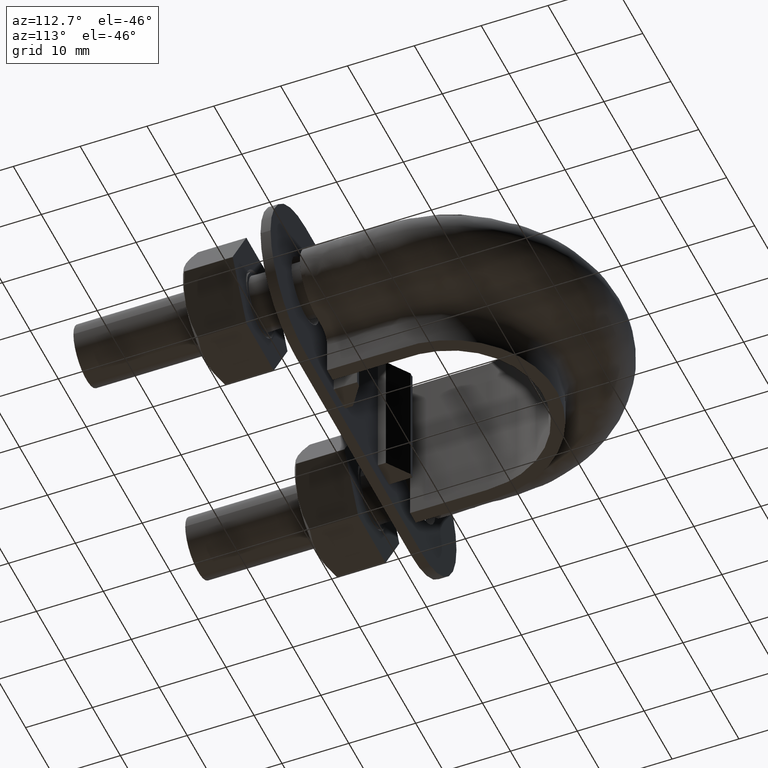
[diagram: clean part render]
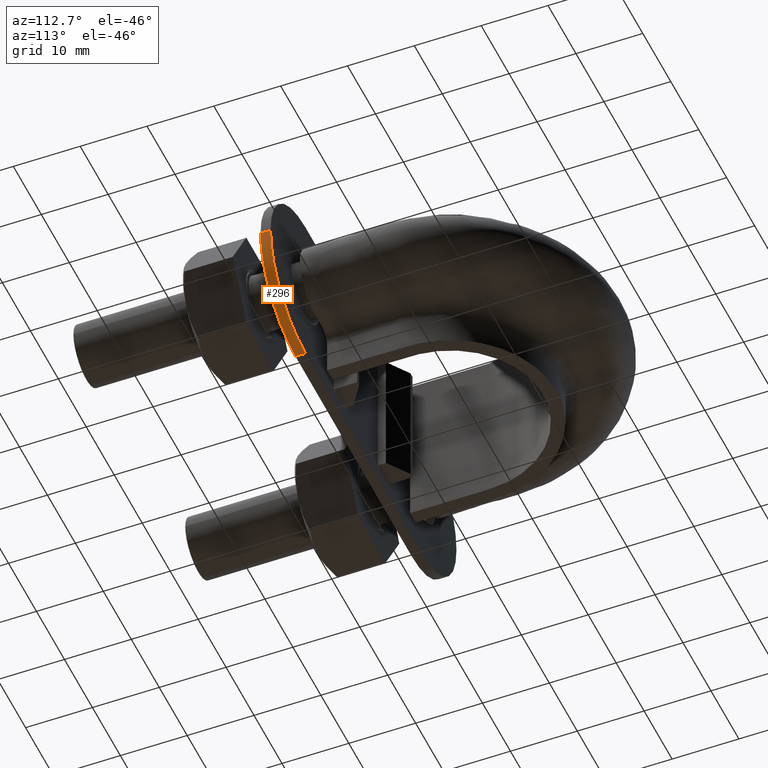
[diagram: same view with one face highlighted and labeled with its STEP entity id]
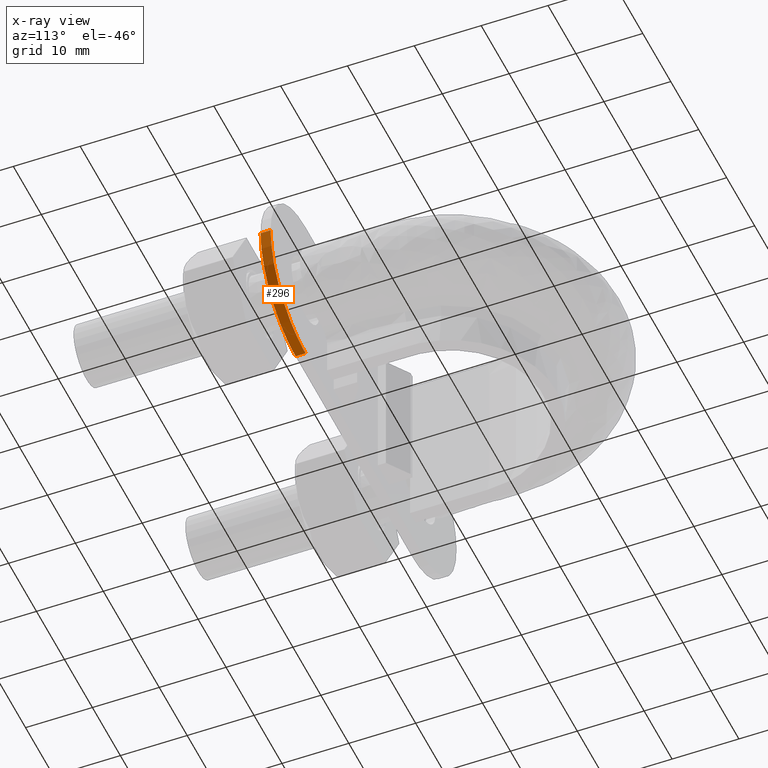
[diagram: x-ray of the same camera — body ghosted, the highlighted face saturated]
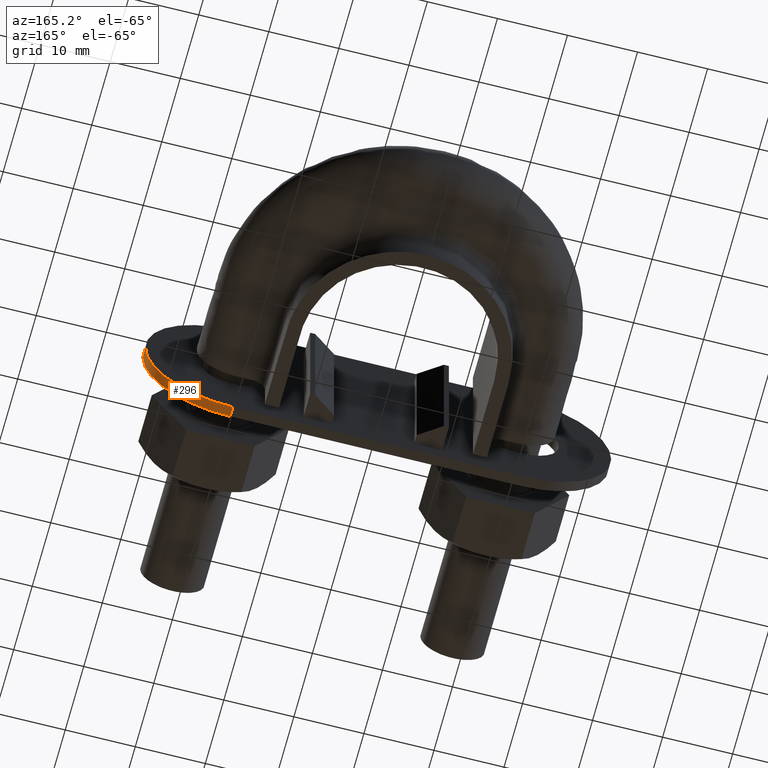
[diagram: same view with one face highlighted and labeled with its STEP entity id]
A machine part, auxiliary view. The second image highlights one B-rep face of the part: STEP entity #296.
The next image is the same camera in x-ray: the body ghosted, the highlighted face saturated — about 0% of this face is hidden behind the body in this view.
A second angle (auxiliary view) of the same face is appended — the face is thin or edge-on in the first view.
In plain terms, the highlighted cylindrical surface (partial cylindrical patch) has radius 12.5 mm, axis along (0, -1, -0).
Its self-contained STEP definition (entity closure, byte-faithful):
#296 = ADVANCED_FACE( '', ( #440 ), #441, .T. );
#440 = FACE_OUTER_BOUND( '', #1383, .T. );
#441 = CYLINDRICAL_SURFACE( '', #1384, 12.5000000000000 );
#1383 = EDGE_LOOP( '', ( #1770, #1771, #1772, #1773 ) );
#1384 = AXIS2_PLACEMENT_3D( '', #1774, #1775, #1776 );
#1770 = ORIENTED_EDGE( '', *, *, #2335, .F. );
#1771 = ORIENTED_EDGE( '', *, *, #2354, .F. );
#1772 = ORIENTED_EDGE( '', *, *, #2304, .T. );
#1773 = ORIENTED_EDGE( '', *, *, #2353, .T. );
#1774 = CARTESIAN_POINT( '', ( 19.9999999999944, 31.3000000000022, -2.26536679450446E-007 ) );
#1775 = DIRECTION( '', ( 1.09118538489341E-013, -1.00000000000000, -1.11964944317086E-013 ) );
#1776 = DIRECTION( '', ( 1.13266433177148E-008, -1.11964943081139E-013, 1.00000000000000 ) );
#2304 = EDGE_CURVE( '', #2540, #2538, #2541, .T. );
#2335 = EDGE_CURVE( '', #2594, #2596, #2597, .T. );
#2353 = EDGE_CURVE( '', #2538, #2596, #2626, .T. );
#2354 = EDGE_CURVE( '', #2540, #2594, #2627, .T. );
#2538 = VERTEX_POINT( '', #3068 );
#2540 = VERTEX_POINT( '', #3071 );
#2541 = CIRCLE( '', #3072, 12.5000000000000 );
#2594 = VERTEX_POINT( '', #3149 );
#2596 = VERTEX_POINT( '', #3151 );
#2597 = CIRCLE( '', #3152, 12.5000000000000 );
#2626 = LINE( '', #3193, #3194 );
#2627 = LINE( '', #3195, #3196 );
#3068 = CARTESIAN_POINT( '', ( 19.9999998584113, 31.3000000000036, -12.5000002265367 ) );
#3071 = CARTESIAN_POINT( '', ( 32.4999999999944, 31.3000000000036, -3.68119717452433E-007 ) );
#3072 = AXIS2_PLACEMENT_3D( '', #3644, #3645, #3646 );
#3149 = CARTESIAN_POINT( '', ( 32.4999999999942, 32.8000000000036, -3.68119549505017E-007 ) );
#3151 = CARTESIAN_POINT( '', ( 19.9999998584112, 32.8000000000036, -12.5000002265365 ) );
#3152 = AXIS2_PLACEMENT_3D( '', #3689, #3690, #3691 );
#3193 = CARTESIAN_POINT( '', ( 19.9999998584113, 31.3000000000036, -12.5000002265367 ) );
#3194 = VECTOR( '', #3719, 1000.00000000000 );
#3195 = CARTESIAN_POINT( '', ( 32.4999999999944, 31.3000000000036, -3.68119717452433E-007 ) );
#3196 = VECTOR( '', #3720, 1000.00000000000 );
#3644 = CARTESIAN_POINT( '', ( 19.9999999999944, 31.3000000000022, -2.26536679450446E-007 ) );
#3645 = DIRECTION( '', ( -1.09118538489341E-013, 1.00000000000000, 1.11964944317086E-013 ) );
#3646 = DIRECTION( '', ( 1.00000000000000, 1.09118539757528E-013, -1.13266431789369E-008 ) );
#3689 = CARTESIAN_POINT( '', ( 19.9999999999942, 32.8000000000022, -2.26536511503029E-007 ) );
#3690 = DIRECTION( '', ( -1.09118538489341E-013, 1.00000000000000, 1.11964944317086E-013 ) );
#3691 = DIRECTION( '', ( 1.00000000000000, 1.09118539757528E-013, -1.13266431789369E-008 ) );
#3719 = DIRECTION( '', ( -1.09118538489341E-013, 1.00000000000000, 1.11964944317086E-013 ) );
#3720 = DIRECTION( '', ( -1.09118538489341E-013, 1.00000000000000, 1.11964944317086E-013 ) );